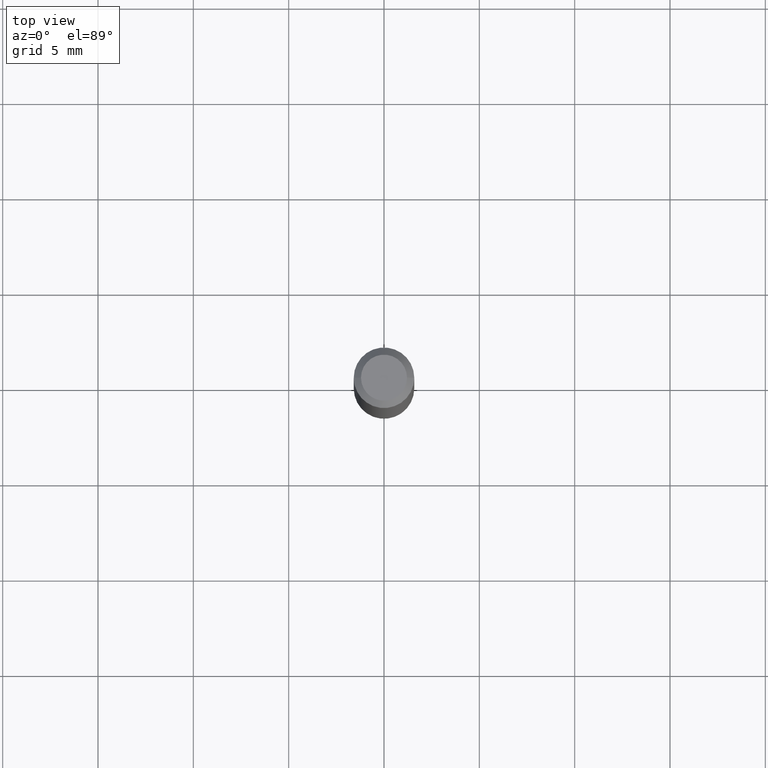
[diagram: clean part render]
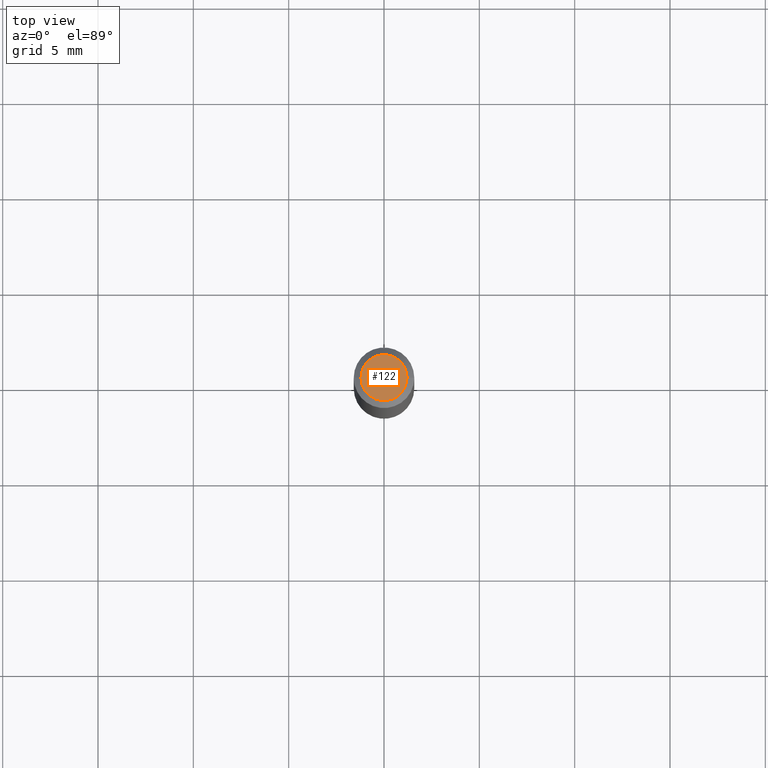
[diagram: same view with one face highlighted and labeled with its STEP entity id]
A machine part, top view. The second image highlights one B-rep face of the part: STEP entity #122.
In plain terms, the highlighted planar face has unit normal (0, -0, -1).
Its self-contained STEP definition (entity closure, byte-faithful):
#3 = CARTESIAN_POINT ( 'NONE',  ( -3.223020679335594837E-45, 4.601619341103081537E-31, 1.317956160873471783E-16 ) ) ;
#12 = DIRECTION ( 'NONE',  ( -1.000000000000000000, 6.982962677686265922E-15, -4.876176775795935793E-29 ) ) ;
#78 = CARTESIAN_POINT ( 'NONE',  ( 0.04749999999999999362, -4.035134999187576158E-16, 1.317956160873497667E-16 ) ) ;
#120 = CARTESIAN_POINT ( 'NONE',  ( 3.316907271900976096E-16, 0.04749999999999999362, -9.994755555137580731E-17 ) ) ;
#122 = ADVANCED_FACE ( 'NONE', ( #436 ), #264, .F. ) ;
#129 = VERTEX_POINT ( 'NONE', #228 ) ;
#131 = CARTESIAN_POINT ( 'NONE',  ( -3.223020679335594837E-45, 4.601619341103081537E-31, 1.317956160873471783E-16 ) ) ;
#142 = EDGE_LOOP ( 'NONE', ( #310, #201 ) ) ;
#201 = ORIENTED_EDGE ( 'NONE', *, *, #400, .T. ) ;
#214 = VERTEX_POINT ( 'NONE', #78 ) ;
#225 = DIRECTION ( 'NONE',  ( -2.445468806185136597E-29, 3.491481338843145583E-15, 1.000000000000000000 ) ) ;
#228 = CARTESIAN_POINT ( 'NONE',  ( -0.04749999999999999362, 3.578768372314212971E-16, 1.317956160873447624E-16 ) ) ;
#229 = DIRECTION ( 'NONE',  ( 2.438088387897960049E-29, -3.491481338843145188E-15, -1.000000000000000000 ) ) ;
#239 = CIRCLE ( 'NONE', #296, 0.04749999999999999362 ) ;
#264 = PLANE ( 'NONE',  #364 ) ;
#268 = AXIS2_PLACEMENT_3D ( 'NONE', #3, #225, #289 ) ;
#272 = DIRECTION ( 'NONE',  ( -2.445468806185136597E-29, 3.491481338843145583E-15, 1.000000000000000000 ) ) ;
#289 = DIRECTION ( 'NONE',  ( 1.000000000000000000, -6.982962677686267499E-15, 4.884662768193073002E-29 ) ) ;
#296 = AXIS2_PLACEMENT_3D ( 'NONE', #131, #272, #451 ) ;
#310 = ORIENTED_EDGE ( 'NONE', *, *, #312, .T. ) ;
#312 = EDGE_CURVE ( 'NONE', #129, #214, #239, .T. ) ;
#364 = AXIS2_PLACEMENT_3D ( 'NONE', #120, #229, #12 ) ;
#366 = CIRCLE ( 'NONE', #268, 0.04749999999999999362 ) ;
#400 = EDGE_CURVE ( 'NONE', #214, #129, #366, .T. ) ;
#436 = FACE_OUTER_BOUND ( 'NONE', #142, .T. ) ;
#451 = DIRECTION ( 'NONE',  ( 1.000000000000000000, -6.982962677686267499E-15, 4.884662768193073002E-29 ) ) ;